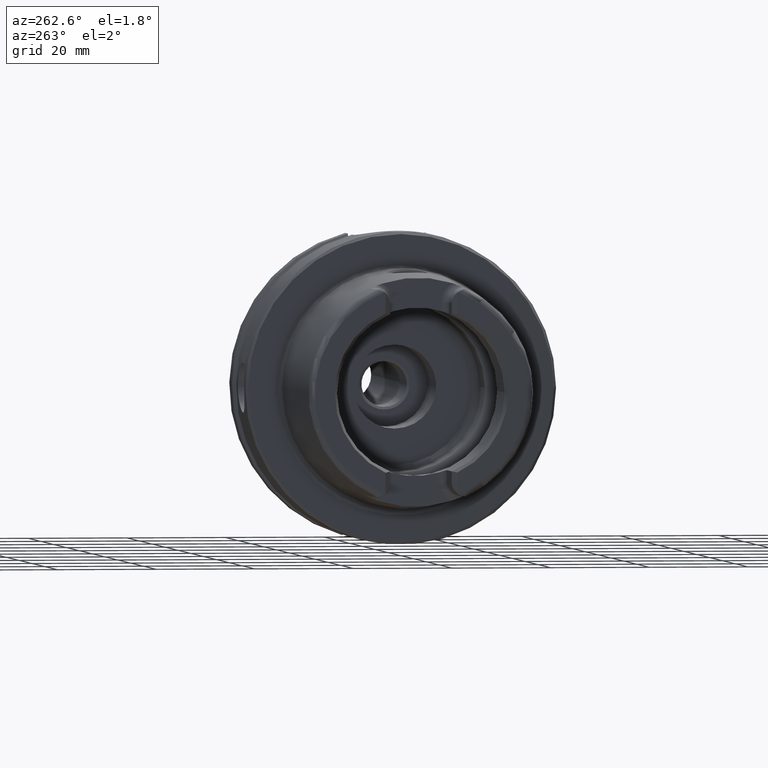
[diagram: clean part render]
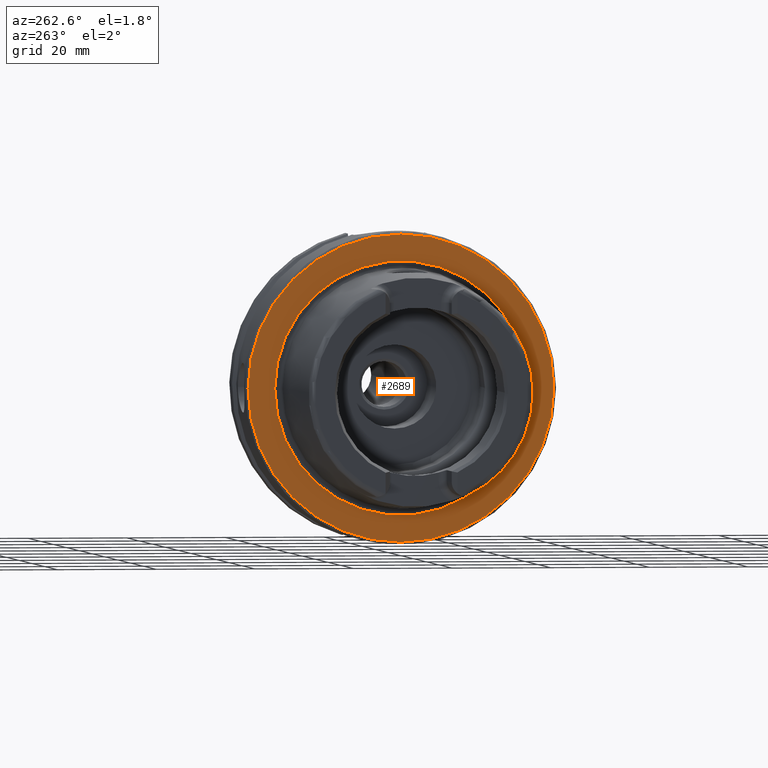
[diagram: same view with one face highlighted and labeled with its STEP entity id]
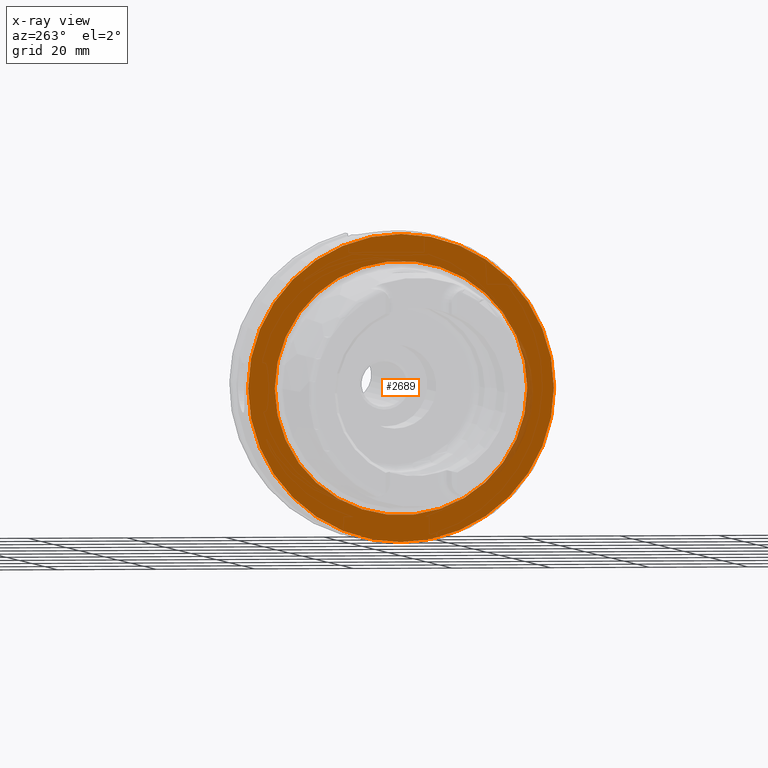
[diagram: x-ray of the same camera — body ghosted, the highlighted face saturated]
A machine part, auxiliary view. The second image highlights one B-rep face of the part: STEP entity #2689.
The next image is the same camera in x-ray: the body ghosted, the highlighted face saturated — about 4% of this face is hidden behind the body in this view.
In plain terms, the highlighted planar face has unit normal (-1, 0, 0).
Its self-contained STEP definition (entity closure, byte-faithful):
#141=FACE_BOUND('',#482,.T.);
#183=PLANE('',#3071);
#335=FACE_OUTER_BOUND('',#481,.T.);
#481=EDGE_LOOP('',(#2489,#2490));
#482=EDGE_LOOP('',(#2491,#2492));
#938=CIRCLE('',#3068,25.5879092835167);
#939=CIRCLE('',#3069,25.5879092835167);
#941=CIRCLE('',#3072,31.);
#942=CIRCLE('',#3073,31.);
#1236=VERTEX_POINT('',#5598);
#1237=VERTEX_POINT('',#5600);
#1238=VERTEX_POINT('',#5605);
#1239=VERTEX_POINT('',#5606);
#1656=EDGE_CURVE('',#1237,#1236,#938,.T.);
#1657=EDGE_CURVE('',#1236,#1237,#939,.T.);
#1659=EDGE_CURVE('',#1238,#1239,#941,.T.);
#1660=EDGE_CURVE('',#1239,#1238,#942,.T.);
#2489=ORIENTED_EDGE('',*,*,#1659,.F.);
#2490=ORIENTED_EDGE('',*,*,#1660,.F.);
#2491=ORIENTED_EDGE('',*,*,#1656,.T.);
#2492=ORIENTED_EDGE('',*,*,#1657,.T.);
#2689=ADVANCED_FACE('',(#335,#141),#183,.T.);
#3068=AXIS2_PLACEMENT_3D('',#5601,#3908,#3909);
#3069=AXIS2_PLACEMENT_3D('',#5602,#3910,#3911);
#3071=AXIS2_PLACEMENT_3D('',#5604,#3914,#3915);
#3072=AXIS2_PLACEMENT_3D('',#5607,#3916,#3917);
#3073=AXIS2_PLACEMENT_3D('',#5608,#3918,#3919);
#3908=DIRECTION('center_axis',(1.,0.,0.));
#3909=DIRECTION('ref_axis',(0.,0.,-1.));
#3910=DIRECTION('center_axis',(1.,0.,0.));
#3911=DIRECTION('ref_axis',(0.,0.,-1.));
#3914=DIRECTION('center_axis',(-1.,0.,0.));
#3915=DIRECTION('ref_axis',(0.,0.,1.));
#3916=DIRECTION('center_axis',(1.,0.,0.));
#3917=DIRECTION('ref_axis',(0.,0.,-1.));
#3918=DIRECTION('center_axis',(1.,0.,0.));
#3919=DIRECTION('ref_axis',(0.,0.,-1.));
#5598=CARTESIAN_POINT('',(-3.55618312575245E-16,-25.5879092835167,-3.13361512009315E-15));
#5600=CARTESIAN_POINT('',(0.,25.5879092835167,0.));
#5601=CARTESIAN_POINT('Origin',(0.,0.,0.));
#5602=CARTESIAN_POINT('Origin',(0.,0.,0.));
#5604=CARTESIAN_POINT('Origin',(0.,31.,0.));
#5605=CARTESIAN_POINT('',(0.,31.,0.));
#5606=CARTESIAN_POINT('',(-5.89805981832114E-16,-31.,-3.7964050773568E-15));
#5607=CARTESIAN_POINT('Origin',(0.,0.,0.));
#5608=CARTESIAN_POINT('Origin',(0.,0.,0.));